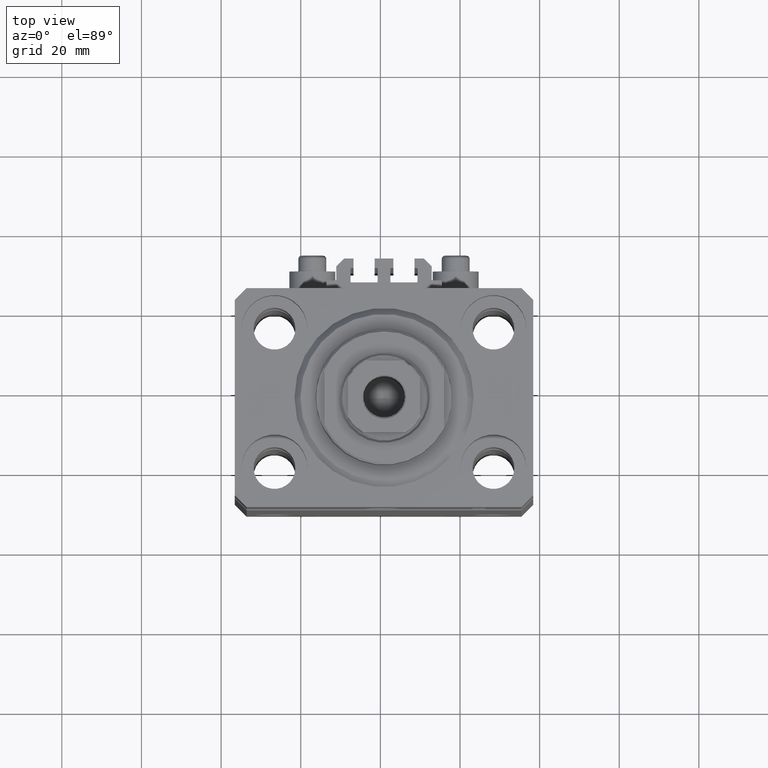
[diagram: clean part render]
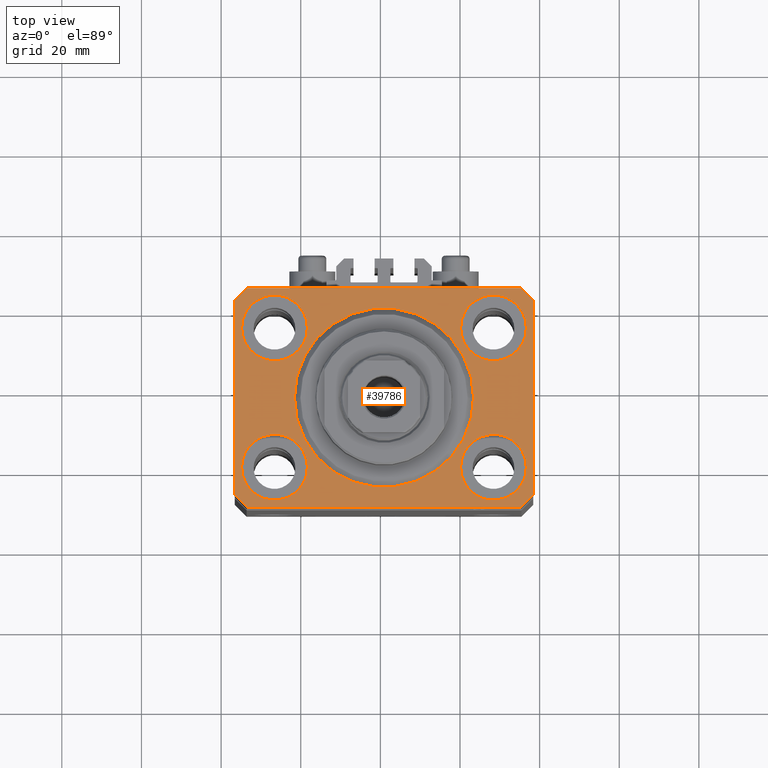
[diagram: same view with one face highlighted and labeled with its STEP entity id]
A machine part, top view. The second image highlights one B-rep face of the part: STEP entity #39786.
In plain terms, the highlighted planar face has unit normal (0, 0, 1).
Its self-contained STEP definition (entity closure, byte-faithful):
#358 = EDGE_CURVE ( 'NONE', #932, #5500, #29841, .T. ) ;
#510 = VECTOR ( 'NONE', #46630, 1000.000000000000000 ) ;
#576 = VECTOR ( 'NONE', #10346, 1000.000000000000114 ) ;
#932 = VERTEX_POINT ( 'NONE', #16084 ) ;
#984 = VECTOR ( 'NONE', #46392, 1000.000000000000000 ) ;
#1201 = CIRCLE ( 'NONE', #42968, 8.250000000000000000 ) ;
#1355 = VECTOR ( 'NONE', #16592, 1000.000000000000000 ) ;
#1594 = VERTEX_POINT ( 'NONE', #41866 ) ;
#1675 = AXIS2_PLACEMENT_3D ( 'NONE', #8117, #38139, #41760 ) ;
#1891 = CARTESIAN_POINT ( 'NONE',  ( 27.50000000000000355, -17.50000000000000000, 0.000000000000000000 ) ) ;
#1945 = CARTESIAN_POINT ( 'NONE',  ( -27.50000000000000355, -17.50000000000000000, 0.000000000000000000 ) ) ;
#1970 = AXIS2_PLACEMENT_3D ( 'NONE', #3706, #25979, #41684 ) ;
#2215 = EDGE_CURVE ( 'NONE', #5500, #43848, #10576, .T. ) ;
#2373 = DIRECTION ( 'NONE',  ( 1.000000000000000000, 0.000000000000000000, 0.000000000000000000 ) ) ;
#2458 = CARTESIAN_POINT ( 'NONE',  ( 0.000000000000000000, 0.000000000000000000, 0.000000000000000000 ) ) ;
#2828 = ORIENTED_EDGE ( 'NONE', *, *, #45973, .T. ) ;
#3121 = DIRECTION ( 'NONE',  ( 1.000000000000000000, 0.000000000000000000, 0.000000000000000000 ) ) ;
#3638 = CIRCLE ( 'NONE', #22978, 8.249999999999992895 ) ;
#3706 = CARTESIAN_POINT ( 'NONE',  ( -27.50000000000000355, 17.50000000000000000, 0.000000000000000000 ) ) ;
#3925 = DIRECTION ( 'NONE',  ( 1.000000000000000000, 0.000000000000000000, 0.000000000000000000 ) ) ;
#3974 = DIRECTION ( 'NONE',  ( 1.000000000000000000, 0.000000000000000000, 0.000000000000000000 ) ) ;
#4573 = CARTESIAN_POINT ( 'NONE',  ( -19.25000000000000355, -17.50000000000000000, 0.000000000000000000 ) ) ;
#4745 = ORIENTED_EDGE ( 'NONE', *, *, #45347, .F. ) ;
#5098 = CIRCLE ( 'NONE', #12847, 8.250000000000000000 ) ;
#5167 = AXIS2_PLACEMENT_3D ( 'NONE', #34330, #15680, #15926 ) ;
#5398 = ORIENTED_EDGE ( 'NONE', *, *, #12983, .F. ) ;
#5500 = VERTEX_POINT ( 'NONE', #8424 ) ;
#5774 = EDGE_CURVE ( 'NONE', #29215, #34125, #24889, .T. ) ;
#6093 = DIRECTION ( 'NONE',  ( 0.000000000000000000, 0.000000000000000000, 1.000000000000000000 ) ) ;
#6328 = FACE_BOUND ( 'NONE', #38375, .T. ) ;
#6596 = CIRCLE ( 'NONE', #24357, 8.250000000000000000 ) ;
#6604 = ORIENTED_EDGE ( 'NONE', *, *, #44203, .T. ) ;
#6874 = EDGE_CURVE ( 'NONE', #31253, #932, #24352, .T. ) ;
#7989 = AXIS2_PLACEMENT_3D ( 'NONE', #17895, #10386, #3121 ) ;
#8073 = AXIS2_PLACEMENT_3D ( 'NONE', #32399, #13506, #2373 ) ;
#8117 = CARTESIAN_POINT ( 'NONE',  ( 27.49999999999999645, 17.50000000000001066, 0.000000000000000000 ) ) ;
#8424 = CARTESIAN_POINT ( 'NONE',  ( 34.49999999999999289, -27.49999999999999645, 0.000000000000000000 ) ) ;
#9099 = CARTESIAN_POINT ( 'NONE',  ( -37.49999999999999289, -24.50000000000000000, 0.000000000000000000 ) ) ;
#9185 = VERTEX_POINT ( 'NONE', #29637 ) ;
#9967 = DIRECTION ( 'NONE',  ( 1.000000000000000000, 0.000000000000000000, -0.000000000000000000 ) ) ;
#10292 = LINE ( 'NONE', #16852, #510 ) ;
#10346 = DIRECTION ( 'NONE',  ( 0.7071067811865474617, 0.7071067811865474617, 0.000000000000000000 ) ) ;
#10386 = DIRECTION ( 'NONE',  ( 0.000000000000000000, 0.000000000000000000, 1.000000000000000000 ) ) ;
#10390 = EDGE_LOOP ( 'NONE', ( #27954, #20040, #12563, #32473, #32013, #26386, #2828, #6604 ) ) ;
#10500 = VERTEX_POINT ( 'NONE', #23744 ) ;
#10576 = LINE ( 'NONE', #10816, #576 ) ;
#10816 = CARTESIAN_POINT ( 'NONE',  ( 34.49999999999999289, -27.49999999999999645, 0.000000000000000000 ) ) ;
#12209 = CARTESIAN_POINT ( 'NONE',  ( -37.49999999999999289, -24.50000000000000000, 0.000000000000000000 ) ) ;
#12563 = ORIENTED_EDGE ( 'NONE', *, *, #36786, .T. ) ;
#12847 = AXIS2_PLACEMENT_3D ( 'NONE', #1891, #41352, #45000 ) ;
#12983 = EDGE_CURVE ( 'NONE', #18035, #24312, #36623, .T. ) ;
#13506 = DIRECTION ( 'NONE',  ( 0.000000000000000000, 0.000000000000000000, 1.000000000000000000 ) ) ;
#14570 = EDGE_LOOP ( 'NONE', ( #44744, #5398 ) ) ;
#15301 = CARTESIAN_POINT ( 'NONE',  ( -34.49999999999998579, -27.49999999999999645, 0.000000000000000000 ) ) ;
#15501 = EDGE_CURVE ( 'NONE', #30558, #22033, #6596, .T. ) ;
#15680 = DIRECTION ( 'NONE',  ( 0.000000000000000000, 0.000000000000000000, 1.000000000000000000 ) ) ;
#15744 = VERTEX_POINT ( 'NONE', #39472 ) ;
#15926 = DIRECTION ( 'NONE',  ( 1.000000000000000000, 0.000000000000000000, 0.000000000000000000 ) ) ;
#16084 = CARTESIAN_POINT ( 'NONE',  ( -34.49999999999998579, -27.49999999999999645, 0.000000000000000000 ) ) ;
#16237 = DIRECTION ( 'NONE',  ( 0.000000000000000000, 0.000000000000000000, 1.000000000000000000 ) ) ;
#16592 = DIRECTION ( 'NONE',  ( -1.000000000000000000, 0.000000000000000000, 0.000000000000000000 ) ) ;
#16852 = CARTESIAN_POINT ( 'NONE',  ( -34.49999999999999289, 27.50000000000000000, 0.000000000000000000 ) ) ;
#17002 = EDGE_LOOP ( 'NONE', ( #42817, #28280 ) ) ;
#17383 = EDGE_CURVE ( 'NONE', #42256, #40204, #35274, .T. ) ;
#17895 = CARTESIAN_POINT ( 'NONE',  ( -27.50000000000000355, 17.50000000000000000, 0.000000000000000000 ) ) ;
#18035 = VERTEX_POINT ( 'NONE', #31634 ) ;
#18284 = CARTESIAN_POINT ( 'NONE',  ( 27.49999999999999645, 17.50000000000001066, 0.000000000000000000 ) ) ;
#18459 = CARTESIAN_POINT ( 'NONE',  ( 37.49999999999999289, -24.50000000000000000, 0.000000000000000000 ) ) ;
#19264 = CARTESIAN_POINT ( 'NONE',  ( 34.50000000000056843, 27.50000000000000000, 0.000000000000000000 ) ) ;
#19379 = LINE ( 'NONE', #19863, #24553 ) ;
#19480 = EDGE_LOOP ( 'NONE', ( #35512, #23041 ) ) ;
#19863 = CARTESIAN_POINT ( 'NONE',  ( 37.50000000000051870, 24.49999999999995381, 0.000000000000000000 ) ) ;
#20040 = ORIENTED_EDGE ( 'NONE', *, *, #45628, .T. ) ;
#20620 = FACE_BOUND ( 'NONE', #17002, .T. ) ;
#21099 = FACE_BOUND ( 'NONE', #37178, .T. ) ;
#21238 = ORIENTED_EDGE ( 'NONE', *, *, #21688, .F. ) ;
#21378 = DIRECTION ( 'NONE',  ( 1.076236605503979380E-14, 1.000000000000000000, 0.000000000000000000 ) ) ;
#21688 = EDGE_CURVE ( 'NONE', #34125, #29215, #3638, .T. ) ;
#22033 = VERTEX_POINT ( 'NONE', #4573 ) ;
#22978 = AXIS2_PLACEMENT_3D ( 'NONE', #18284, #26481, #3974 ) ;
#23041 = ORIENTED_EDGE ( 'NONE', *, *, #17383, .F. ) ;
#23744 = CARTESIAN_POINT ( 'NONE',  ( 35.75000000000000711, -17.50000000000000000, 0.000000000000000000 ) ) ;
#24312 = VERTEX_POINT ( 'NONE', #33255 ) ;
#24352 = LINE ( 'NONE', #9099, #984 ) ;
#24357 = AXIS2_PLACEMENT_3D ( 'NONE', #1945, #16237, #27866 ) ;
#24497 = FACE_BOUND ( 'NONE', #19480, .T. ) ;
#24553 = VECTOR ( 'NONE', #45287, 1000.000000000000114 ) ;
#24889 = CIRCLE ( 'NONE', #1675, 8.249999999999992895 ) ;
#25450 = CARTESIAN_POINT ( 'NONE',  ( -35.75000000000000711, -17.50000000000000000, 0.000000000000000000 ) ) ;
#25512 = EDGE_CURVE ( 'NONE', #15744, #1594, #27011, .T. ) ;
#25979 = DIRECTION ( 'NONE',  ( 0.000000000000000000, 0.000000000000000000, 1.000000000000000000 ) ) ;
#26062 = CIRCLE ( 'NONE', #5167, 8.250000000000000000 ) ;
#26235 = DIRECTION ( 'NONE',  ( 1.000000000000000000, 0.000000000000000000, 0.000000000000000000 ) ) ;
#26386 = ORIENTED_EDGE ( 'NONE', *, *, #2215, .T. ) ;
#26481 = DIRECTION ( 'NONE',  ( 0.000000000000000000, 0.000000000000000000, 1.000000000000000000 ) ) ;
#27011 = LINE ( 'NONE', #19264, #1355 ) ;
#27420 = CIRCLE ( 'NONE', #8073, 22.50000000000000355 ) ;
#27710 = ORIENTED_EDGE ( 'NONE', *, *, #40748, .F. ) ;
#27866 = DIRECTION ( 'NONE',  ( 1.000000000000000000, 0.000000000000000000, 0.000000000000000000 ) ) ;
#27954 = ORIENTED_EDGE ( 'NONE', *, *, #25512, .T. ) ;
#28038 = VERTEX_POINT ( 'NONE', #29726 ) ;
#28280 = ORIENTED_EDGE ( 'NONE', *, *, #15501, .F. ) ;
#28944 = VECTOR ( 'NONE', #34573, 1000.000000000000000 ) ;
#29215 = VERTEX_POINT ( 'NONE', #37644 ) ;
#29527 = ORIENTED_EDGE ( 'NONE', *, *, #5774, .F. ) ;
#29637 = CARTESIAN_POINT ( 'NONE',  ( 19.25000000000000000, -17.50000000000000000, 0.000000000000000000 ) ) ;
#29726 = CARTESIAN_POINT ( 'NONE',  ( 37.50000000000051870, 24.49999999999995381, 0.000000000000000000 ) ) ;
#29841 = LINE ( 'NONE', #15301, #44164 ) ;
#30558 = VERTEX_POINT ( 'NONE', #25450 ) ;
#31253 = VERTEX_POINT ( 'NONE', #12209 ) ;
#31634 = CARTESIAN_POINT ( 'NONE',  ( -35.75000000000000711, 17.50000000000000000, 0.000000000000000000 ) ) ;
#31718 = VERTEX_POINT ( 'NONE', #36773 ) ;
#32013 = ORIENTED_EDGE ( 'NONE', *, *, #358, .T. ) ;
#32215 = DIRECTION ( 'NONE',  ( 0.000000000000000000, 0.000000000000000000, 1.000000000000000000 ) ) ;
#32399 = CARTESIAN_POINT ( 'NONE',  ( 0.000000000000000000, 0.000000000000000000, 0.000000000000000000 ) ) ;
#32473 = ORIENTED_EDGE ( 'NONE', *, *, #6874, .T. ) ;
#33255 = CARTESIAN_POINT ( 'NONE',  ( -19.25000000000000355, 17.50000000000000000, 0.000000000000000000 ) ) ;
#33784 = CARTESIAN_POINT ( 'NONE',  ( 37.49999999999999289, -24.50000000000000000, 0.000000000000000000 ) ) ;
#34125 = VERTEX_POINT ( 'NONE', #34170 ) ;
#34170 = CARTESIAN_POINT ( 'NONE',  ( 19.25000000000000000, 17.50000000000001066, 0.000000000000000000 ) ) ;
#34328 = CARTESIAN_POINT ( 'NONE',  ( -37.49999999999999289, 24.50000000000000000, 0.000000000000000000 ) ) ;
#34330 = CARTESIAN_POINT ( 'NONE',  ( -27.50000000000000355, -17.50000000000000000, 0.000000000000000000 ) ) ;
#34573 = DIRECTION ( 'NONE',  ( 0.000000000000000000, -1.000000000000000000, 0.000000000000000000 ) ) ;
#35274 = CIRCLE ( 'NONE', #45291, 22.50000000000000355 ) ;
#35512 = ORIENTED_EDGE ( 'NONE', *, *, #37794, .F. ) ;
#35630 = PLANE ( 'NONE',  #40604 ) ;
#35869 = FACE_OUTER_BOUND ( 'NONE', #10390, .T. ) ;
#36623 = CIRCLE ( 'NONE', #7989, 8.250000000000000000 ) ;
#36773 = CARTESIAN_POINT ( 'NONE',  ( -37.49999999999999289, 24.50000000000000000, 0.000000000000000000 ) ) ;
#36786 = EDGE_CURVE ( 'NONE', #31718, #31253, #45223, .T. ) ;
#37178 = EDGE_LOOP ( 'NONE', ( #29527, #21238 ) ) ;
#37644 = CARTESIAN_POINT ( 'NONE',  ( 35.74999999999999289, 17.50000000000001066, 0.000000000000000000 ) ) ;
#37698 = CARTESIAN_POINT ( 'NONE',  ( 22.50000000000000355, 0.000000000000000000, 0.000000000000000000 ) ) ;
#37794 = EDGE_CURVE ( 'NONE', #40204, #42256, #27420, .T. ) ;
#38139 = DIRECTION ( 'NONE',  ( 0.000000000000000000, 0.000000000000000000, 1.000000000000000000 ) ) ;
#38375 = EDGE_LOOP ( 'NONE', ( #27710, #4745 ) ) ;
#39163 = VECTOR ( 'NONE', #21378, 1000.000000000000000 ) ;
#39263 = FACE_BOUND ( 'NONE', #14570, .T. ) ;
#39472 = CARTESIAN_POINT ( 'NONE',  ( 34.50000000000056843, 27.50000000000000000, 0.000000000000000000 ) ) ;
#39786 = ADVANCED_FACE ( 'NONE', ( #20620, #6328, #21099, #39263, #24497, #35869 ), #35630, .T. ) ;
#40173 = DIRECTION ( 'NONE',  ( 1.000000000000000000, 0.000000000000000000, 0.000000000000000000 ) ) ;
#40204 = VERTEX_POINT ( 'NONE', #37698 ) ;
#40474 = LINE ( 'NONE', #18459, #39163 ) ;
#40477 = EDGE_CURVE ( 'NONE', #24312, #18035, #43725, .T. ) ;
#40604 = AXIS2_PLACEMENT_3D ( 'NONE', #2458, #6093, #9967 ) ;
#40748 = EDGE_CURVE ( 'NONE', #10500, #9185, #1201, .T. ) ;
#40763 = CARTESIAN_POINT ( 'NONE',  ( 0.000000000000000000, 0.000000000000000000, 0.000000000000000000 ) ) ;
#41352 = DIRECTION ( 'NONE',  ( 0.000000000000000000, 0.000000000000000000, 1.000000000000000000 ) ) ;
#41684 = DIRECTION ( 'NONE',  ( 1.000000000000000000, 0.000000000000000000, 0.000000000000000000 ) ) ;
#41760 = DIRECTION ( 'NONE',  ( 1.000000000000000000, 0.000000000000000000, 0.000000000000000000 ) ) ;
#41866 = CARTESIAN_POINT ( 'NONE',  ( -34.49999999999999289, 27.50000000000000000, 0.000000000000000000 ) ) ;
#42256 = VERTEX_POINT ( 'NONE', #46635 ) ;
#42817 = ORIENTED_EDGE ( 'NONE', *, *, #44367, .F. ) ;
#42968 = AXIS2_PLACEMENT_3D ( 'NONE', #46748, #32215, #40173 ) ;
#43725 = CIRCLE ( 'NONE', #1970, 8.250000000000000000 ) ;
#43848 = VERTEX_POINT ( 'NONE', #33784 ) ;
#44164 = VECTOR ( 'NONE', #3925, 1000.000000000000000 ) ;
#44203 = EDGE_CURVE ( 'NONE', #28038, #15744, #19379, .T. ) ;
#44367 = EDGE_CURVE ( 'NONE', #22033, #30558, #26062, .T. ) ;
#44744 = ORIENTED_EDGE ( 'NONE', *, *, #40477, .F. ) ;
#45000 = DIRECTION ( 'NONE',  ( 1.000000000000000000, 0.000000000000000000, 0.000000000000000000 ) ) ;
#45223 = LINE ( 'NONE', #34328, #28944 ) ;
#45287 = DIRECTION ( 'NONE',  ( -0.7071067811865356934, 0.7071067811865594521, 0.000000000000000000 ) ) ;
#45291 = AXIS2_PLACEMENT_3D ( 'NONE', #40763, #47812, #26235 ) ;
#45347 = EDGE_CURVE ( 'NONE', #9185, #10500, #5098, .T. ) ;
#45628 = EDGE_CURVE ( 'NONE', #1594, #31718, #10292, .T. ) ;
#45973 = EDGE_CURVE ( 'NONE', #43848, #28038, #40474, .T. ) ;
#46392 = DIRECTION ( 'NONE',  ( 0.7071067811865483499, -0.7071067811865466846, 0.000000000000000000 ) ) ;
#46630 = DIRECTION ( 'NONE',  ( -0.7071067811865471286, -0.7071067811865479058, 0.000000000000000000 ) ) ;
#46635 = CARTESIAN_POINT ( 'NONE',  ( -22.50000000000000355, 2.755455298081545172E-15, 0.000000000000000000 ) ) ;
#46748 = CARTESIAN_POINT ( 'NONE',  ( 27.50000000000000355, -17.50000000000000000, 0.000000000000000000 ) ) ;
#47812 = DIRECTION ( 'NONE',  ( 0.000000000000000000, 0.000000000000000000, 1.000000000000000000 ) ) ;